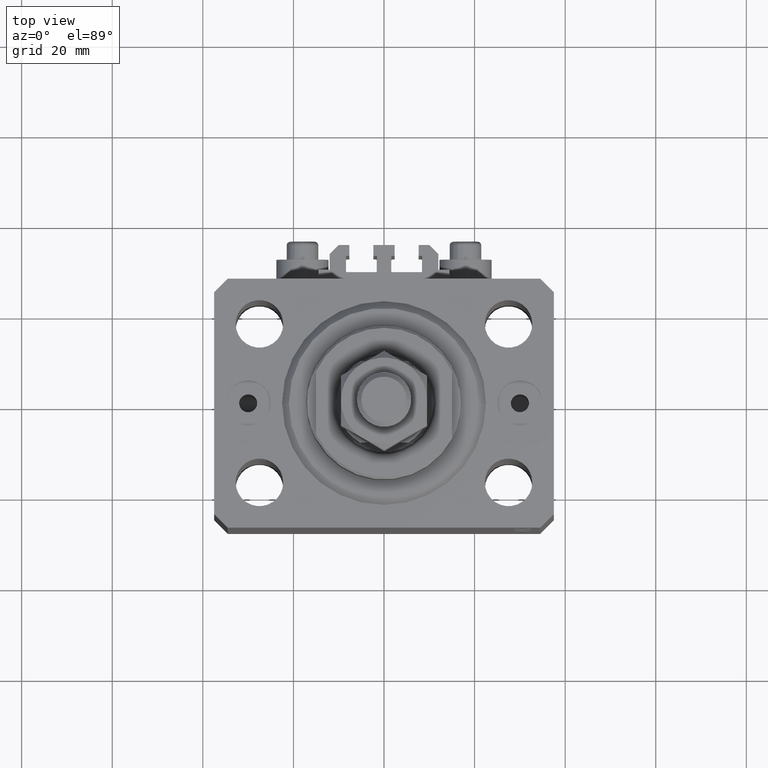
[diagram: clean part render]
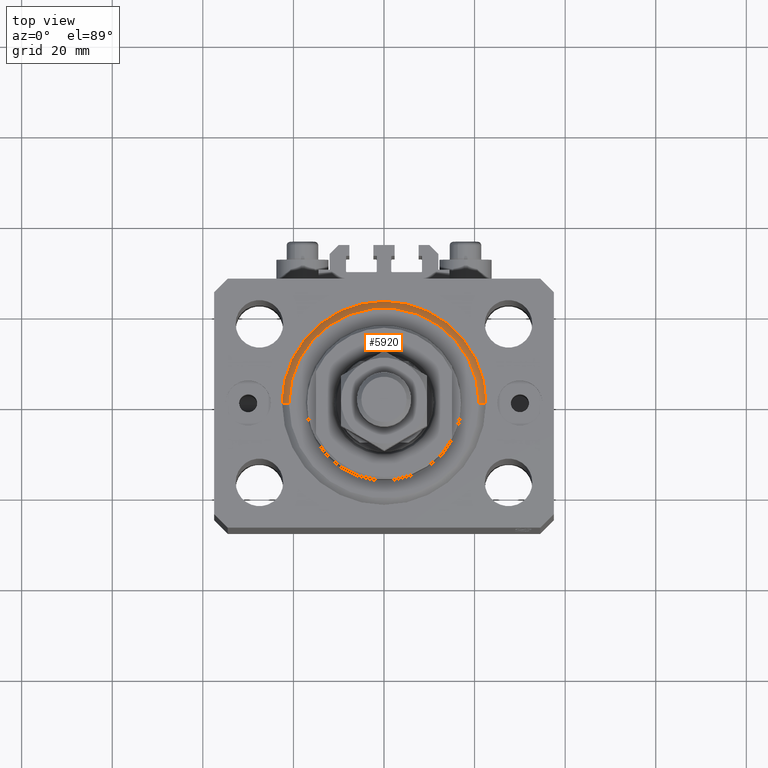
[diagram: same view with one face highlighted and labeled with its STEP entity id]
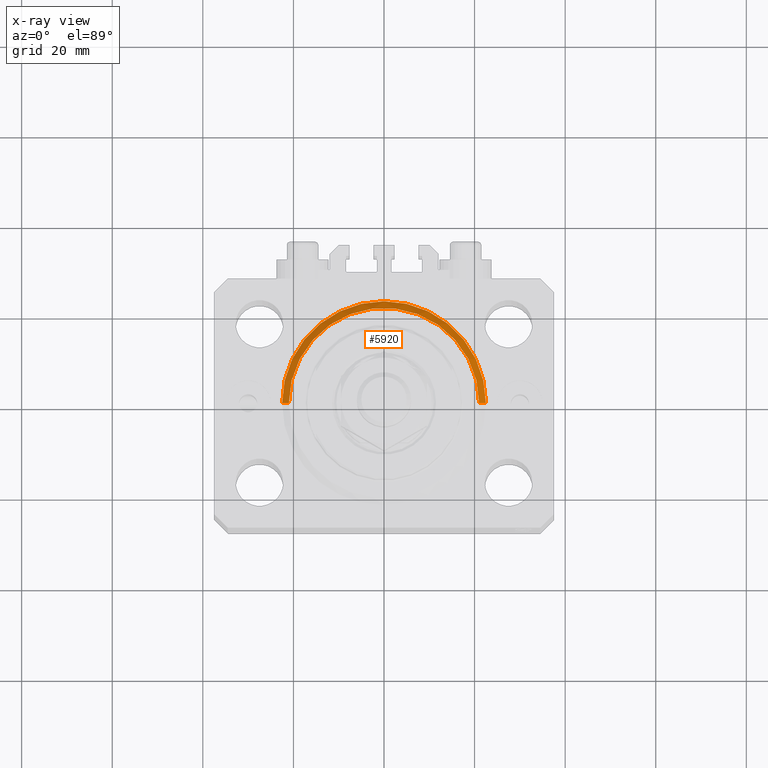
[diagram: x-ray of the same camera — body ghosted, the highlighted face saturated]
A machine part, top view. The second image highlights one B-rep face of the part: STEP entity #5920.
The next image is the same camera in x-ray: the body ghosted, the highlighted face saturated — about 0% of this face is hidden behind the body in this view.
In plain terms, the highlighted conical surface has half-angle 45 deg.
Its self-contained STEP definition (entity closure, byte-faithful):
#358 = CARTESIAN_POINT ( 'NONE',  ( 20.99999999999995381, 0.000000000000000000, 0.000000000000000000 ) ) ;
#704 = CIRCLE ( 'NONE', #34578, 20.99999999999995381 ) ;
#1429 = DIRECTION ( 'NONE',  ( -0.000000000000000000, -0.000000000000000000, 1.000000000000000000 ) ) ;
#2457 = DIRECTION ( 'NONE',  ( 1.000000000000000000, 0.000000000000000000, 0.000000000000000000 ) ) ;
#3140 = CONICAL_SURFACE ( 'NONE', #23626, 22.50000000000000355, 0.7853981633974517207 ) ;
#3294 = EDGE_CURVE ( 'NONE', #9393, #30148, #704, .T. ) ;
#4423 = ORIENTED_EDGE ( 'NONE', *, *, #3294, .F. ) ;
#4438 = DIRECTION ( 'NONE',  ( -0.000000000000000000, -0.000000000000000000, -1.000000000000000000 ) ) ;
#4728 = CARTESIAN_POINT ( 'NONE',  ( -22.50000000000000355, 2.755455298081545172E-15, 1.500000000000039524 ) ) ;
#4973 = LINE ( 'NONE', #4728, #41165 ) ;
#5920 = ADVANCED_FACE ( 'NONE', ( #36247 ), #3140, .T. ) ;
#6076 = CARTESIAN_POINT ( 'NONE',  ( -22.50000000000000355, 0.000000000000000000, 1.500000000000039524 ) ) ;
#6434 = DIRECTION ( 'NONE',  ( 0.7071067811865500152, 0.000000000000000000, 0.7071067811865451302 ) ) ;
#8142 = ORIENTED_EDGE ( 'NONE', *, *, #16534, .F. ) ;
#9155 = CARTESIAN_POINT ( 'NONE',  ( 22.50000000000000355, 0.000000000000000000, 1.500000000000039524 ) ) ;
#9393 = VERTEX_POINT ( 'NONE', #28410 ) ;
#9609 = EDGE_CURVE ( 'NONE', #30148, #27732, #42955, .T. ) ;
#11598 = DIRECTION ( 'NONE',  ( 1.000000000000000000, 0.000000000000000000, 0.000000000000000000 ) ) ;
#14346 = AXIS2_PLACEMENT_3D ( 'NONE', #35221, #1429, #16489 ) ;
#16489 = DIRECTION ( 'NONE',  ( 1.000000000000000000, 0.000000000000000000, 0.000000000000000000 ) ) ;
#16534 = EDGE_CURVE ( 'NONE', #27732, #25213, #33246, .T. ) ;
#17050 = VECTOR ( 'NONE', #6434, 1000.000000000000114 ) ;
#19099 = EDGE_CURVE ( 'NONE', #9393, #25213, #4973, .T. ) ;
#19410 = CARTESIAN_POINT ( 'NONE',  ( 22.50000000000000355, 2.755455298081544383E-15, 1.500000000000039524 ) ) ;
#23174 = CARTESIAN_POINT ( 'NONE',  ( 0.000000000000000000, 0.000000000000000000, 0.000000000000000000 ) ) ;
#23626 = AXIS2_PLACEMENT_3D ( 'NONE', #29065, #28826, #2457 ) ;
#25213 = VERTEX_POINT ( 'NONE', #6076 ) ;
#27732 = VERTEX_POINT ( 'NONE', #19410 ) ;
#28410 = CARTESIAN_POINT ( 'NONE',  ( -20.99999999999995381, 2.663606788145490261E-15, 0.000000000000000000 ) ) ;
#28826 = DIRECTION ( 'NONE',  ( -0.000000000000000000, -0.000000000000000000, 1.000000000000000000 ) ) ;
#29065 = CARTESIAN_POINT ( 'NONE',  ( 0.000000000000000000, 0.000000000000000000, 1.500000000000039524 ) ) ;
#30148 = VERTEX_POINT ( 'NONE', #358 ) ;
#31966 = ORIENTED_EDGE ( 'NONE', *, *, #9609, .F. ) ;
#33246 = CIRCLE ( 'NONE', #14346, 22.50000000000000355 ) ;
#34578 = AXIS2_PLACEMENT_3D ( 'NONE', #23174, #4438, #11598 ) ;
#35221 = CARTESIAN_POINT ( 'NONE',  ( 0.000000000000000000, 0.000000000000000000, 1.500000000000039524 ) ) ;
#36247 = FACE_OUTER_BOUND ( 'NONE', #38177, .T. ) ;
#38177 = EDGE_LOOP ( 'NONE', ( #4423, #46656, #8142, #31966 ) ) ;
#40809 = DIRECTION ( 'NONE',  ( -0.7071067811865500152, 8.659560562354962440E-17, 0.7071067811865451302 ) ) ;
#41165 = VECTOR ( 'NONE', #40809, 1000.000000000000114 ) ;
#42955 = LINE ( 'NONE', #9155, #17050 ) ;
#46656 = ORIENTED_EDGE ( 'NONE', *, *, #19099, .T. ) ;